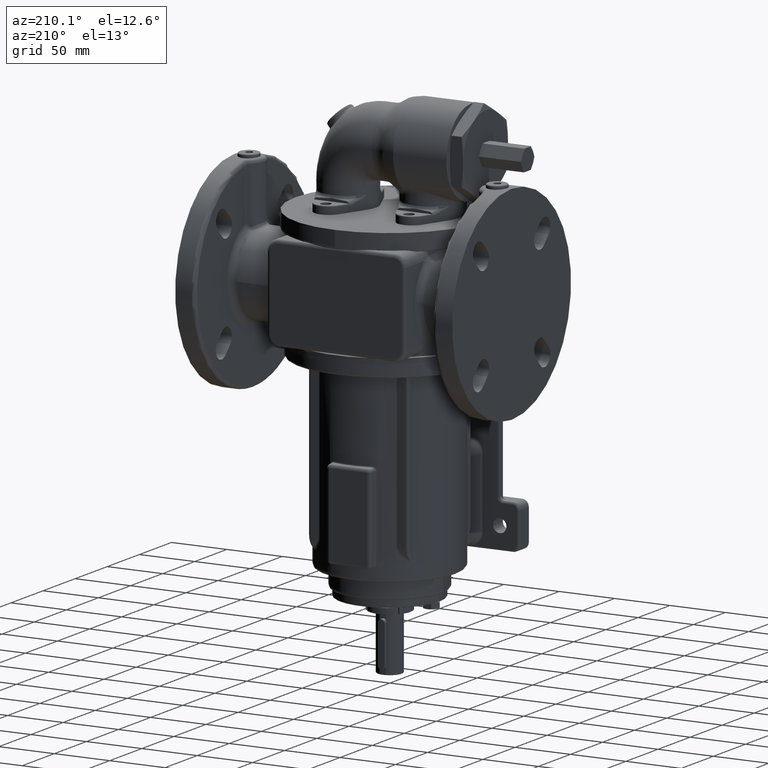
[diagram: clean part render]
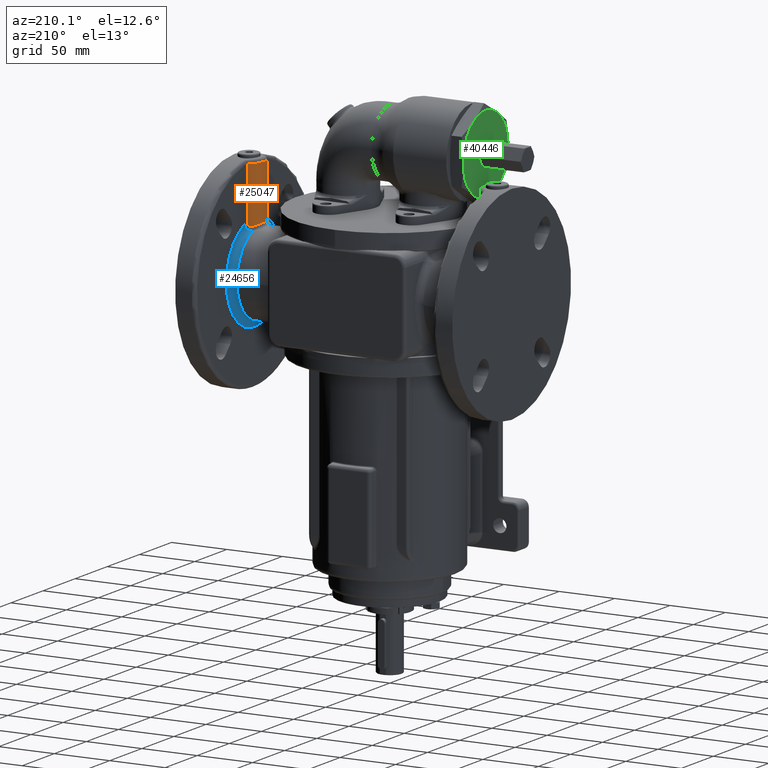
[diagram: same view with three faces highlighted in distinct colors, each labeled with its STEP entity id]
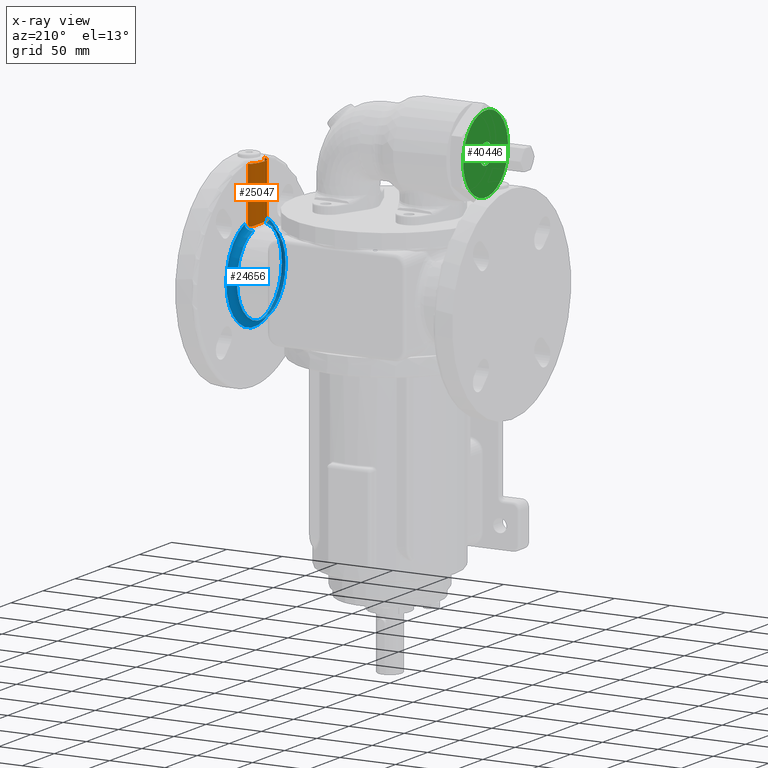
[diagram: x-ray of the same camera — body ghosted, the three highlighted faces saturated]
A machine part, auxiliary view with three faces highlighted in distinct colors.
The next image is the same camera in x-ray (body ghosted, the three faces saturated) — at least one of them is partly hidden behind the body in this view.
Their STEP definitions:

[orange] entity #25047 — the highlighted cylindrical surface (edge-blend (fillet) strip) has radius 15 mm, axis along (0, 0, -1).
#2367=CARTESIAN_POINT('',(1.055E2,1.300961894323E1,1.388946005109E2));
#2385=CARTESIAN_POINT('',(1.055E2,1.300961894323E1,1.388946005109E2));
#2386=CARTESIAN_POINT('',(1.046744870140E2,1.348622923909E1,1.389391749402E2));
#2387=CARTESIAN_POINT('',(1.031146423224E2,1.459712974241E1,1.390381606301E2));
#2388=CARTESIAN_POINT('',(1.011311824444E2,1.667916486277E1,1.391949880936E2));
#2389=CARTESIAN_POINT('',(9.958038842211E1,1.909702391319E1,1.393372842007E2));
#2390=CARTESIAN_POINT('',(9.851738151447E1,2.175971517704E1,1.394447374191E2));
#2391=CARTESIAN_POINT('',(9.797754856775E1,2.457014652371E1,1.395023807493E2));
#2392=CARTESIAN_POINT('',(9.797754857717E1,2.742985350508E1,1.395023807482E2));
#2393=CARTESIAN_POINT('',(9.851738148848E1,3.024028470287E1,1.394447374219E2));
#2394=CARTESIAN_POINT('',(9.958038831947E1,3.290297586495E1,1.393372842113E2));
#2395=CARTESIAN_POINT('',(1.011311822268E2,3.532083487305E1,1.391949881120E2));
#2396=CARTESIAN_POINT('',(1.031146422758E2,3.740287023757E1,1.390381606324E2));
#2397=CARTESIAN_POINT('',(1.046744870033E2,3.851377075443E1,1.389391749408E2));
#2398=CARTESIAN_POINT('',(1.055E2,3.899038105677E1,1.388946005109E2));
#2400=DIRECTION('',(2.449402328071E-12,4.241662451964E-12,1.E0));
#2401=VECTOR('',#2400,4.774851928806E1);
#2402=CARTESIAN_POINT('',(1.054999999999E2,1.300961894303E1,9.114608122288E1));
#2403=LINE('',#2402,#2401);
#2404=CARTESIAN_POINT('',(1.054999999999E2,1.300961894303E1,9.114608122288E1));
#2405=CARTESIAN_POINT('',(1.054999997280E2,1.300961906456E1,9.081384565928E1));
#2406=CARTESIAN_POINT('',(1.054223682495E2,1.305404410605E1,9.021420455046E1));
#2407=CARTESIAN_POINT('',(1.051270075634E2,1.322992298092E1,8.948971563349E1));
#2408=CARTESIAN_POINT('',(1.047226540636E2,1.348695009346E1,8.899612753682E1));
#2409=CARTESIAN_POINT('',(1.042418771863E2,1.381639181197E1,8.869209275766E1));
#2410=CARTESIAN_POINT('',(1.036515184681E2,1.426048745236E1,8.857909903673E1));
#2411=CARTESIAN_POINT('',(1.032224382362E2,1.462070543178E1,8.866006610453E1));
#2412=CARTESIAN_POINT('',(1.030000000677E2,1.481966005424E1,8.874274123299E1));
#2414=CARTESIAN_POINT('',(1.030000000677E2,1.481966005424E1,8.874274123299E1));
#2415=CARTESIAN_POINT('',(1.023303075185E2,1.541865127032E1,8.899165414848E1));
#2416=CARTESIAN_POINT('',(1.011196068738E2,1.671644537036E1,8.948618318100E1));
#2417=CARTESIAN_POINT('',(9.969338298284E1,1.891855415298E1,9.014221318958E1));
#2418=CARTESIAN_POINT('',(9.870448937423E1,2.123878988276E1,9.063318698764E1));
#2419=CARTESIAN_POINT('',(9.812622748493E1,2.360865673325E1,9.093315086317E1));
#2420=CARTESIAN_POINT('',(9.800000086547E1,2.520831578911E1,9.099999946975E1));
#2421=CARTESIAN_POINT('',(9.800000000001E1,2.599998589956E1,9.099999999998E1));
#2423=CARTESIAN_POINT('',(9.800000000001E1,2.599998589956E1,9.099999999998E1));
#2424=CARTESIAN_POINT('',(9.799999937634E1,2.679163448324E1,9.100000025531E1));
#2425=CARTESIAN_POINT('',(9.812621776106E1,2.839126792372E1,9.093315611963E1));
#2426=CARTESIAN_POINT('',(9.870445763424E1,3.076112638090E1,9.063320282454E1));
#2427=CARTESIAN_POINT('',(9.969338425951E1,3.308145081504E1,9.014221293198E1));
#2428=CARTESIAN_POINT('',(1.011196314136E2,3.528361457077E1,8.948616956532E1));
#2429=CARTESIAN_POINT('',(1.023304257871E2,3.658143107058E1,8.899161007302E1));
#2430=CARTESIAN_POINT('',(1.029998552285E2,3.718021039173E1,8.874279047695E1));
#2432=CARTESIAN_POINT('',(1.054999999999E2,3.899038105702E1,9.114608122288E1));
#2433=CARTESIAN_POINT('',(1.054999997196E2,3.899038093425E1,9.081380805070E1));
#2434=CARTESIAN_POINT('',(1.054223503677E2,3.894594551707E1,9.021410751719E1));
#2435=CARTESIAN_POINT('',(1.051269342451E2,3.877003335811E1,8.948957195791E1));
#2436=CARTESIAN_POINT('',(1.047225000335E2,3.851294716360E1,8.899599290264E1));
#2437=CARTESIAN_POINT('',(1.042416835141E2,3.818347717428E1,8.869198074631E1));
#2438=CARTESIAN_POINT('',(1.036510281680E2,3.773911553750E1,8.857912362167E1));
#2439=CARTESIAN_POINT('',(1.032223309645E2,3.737920642067E1,8.866009626167E1));
#2440=CARTESIAN_POINT('',(1.029998552285E2,3.718021039173E1,8.874279047695E1));
#2442=DIRECTION('',(-3.065175525735E-12,5.308774486873E-12,-1.E0));
#2443=VECTOR('',#2442,4.774851928806E1);
#2444=CARTESIAN_POINT('',(1.055E2,3.899038105677E1,1.388946005109E2));
#2445=LINE('',#2444,#2443);
#13377=VERTEX_POINT('',#2414);
#13378=VERTEX_POINT('',#2421);
#13379=VERTEX_POINT('',#2430);
#13380=VERTEX_POINT('',#2404);
#13397=VERTEX_POINT('',#2367);
#13399=VERTEX_POINT('',#2398);
#13405=CARTESIAN_POINT('',(1.054999999999E2,3.899038105702E1,9.114608122288E1));
#13406=VERTEX_POINT('',#13405);
#25028=CARTESIAN_POINT('',(1.13E2,2.6E1,5.E1));
#25029=DIRECTION('',(0.E0,0.E0,-1.E0));
#25030=DIRECTION('',(-1.E0,0.E0,0.E0));
#25031=AXIS2_PLACEMENT_3D('',#25028,#25029,#25030);
#25032=CYLINDRICAL_SURFACE('',#25031,1.5E1);
#25034=ORIENTED_EDGE('',*,*,#25033,.F.);
#25035=ORIENTED_EDGE('',*,*,#24857,.F.);
#25036=ORIENTED_EDGE('',*,*,#25019,.T.);
#25038=ORIENTED_EDGE('',*,*,#25037,.T.);
#25040=ORIENTED_EDGE('',*,*,#25039,.T.);
#25042=ORIENTED_EDGE('',*,*,#25041,.F.);
#25044=ORIENTED_EDGE('',*,*,#25043,.F.);
#25045=EDGE_LOOP('',(#25034,#25035,#25036,#25038,#25040,#25042,#25044));
#25046=FACE_OUTER_BOUND('',#25045,.F.);
#25047=ADVANCED_FACE('',(#25046),#25032,.T.);
#2399=B_SPLINE_CURVE_WITH_KNOTS('',3,(#2385,#2386,#2387,#2388,#2389,#2390,#2391,
#2392,#2393,#2394,#2395,#2396,#2397,#2398),.UNSPECIFIED.,.F.,.F.,(4,1,1,1,1,1,1,
1,1,1,1,4),(0.E0,9.090909090909E-2,1.818181818182E-1,2.727272727273E-1,
3.636363636364E-1,4.545454545455E-1,5.454545454545E-1,6.363636363636E-1,
7.272727272727E-1,8.181818181818E-1,9.090909090909E-1,1.E0),.UNSPECIFIED.);
#2413=B_SPLINE_CURVE_WITH_KNOTS('',3,(#2404,#2405,#2406,#2407,#2408,#2409,#2410,
#2411,#2412),.UNSPECIFIED.,.F.,.F.,(4,1,1,1,1,1,4),(0.E0,1.666666666667E-1,
3.333333333333E-1,5.E-1,6.666666666667E-1,8.333333333333E-1,1.E0),
.UNSPECIFIED.);
#2422=B_SPLINE_CURVE_WITH_KNOTS('',3,(#2414,#2415,#2416,#2417,#2418,#2419,#2420,
#2421),.UNSPECIFIED.,.F.,.F.,(4,1,1,1,1,4),(0.E0,2.E-1,4.E-1,6.E-1,8.E-1,1.E0),
.UNSPECIFIED.);
#2431=B_SPLINE_CURVE_WITH_KNOTS('',3,(#2423,#2424,#2425,#2426,#2427,#2428,#2429,
#2430),.UNSPECIFIED.,.F.,.F.,(4,1,1,1,1,4),(0.E0,2.E-1,4.E-1,6.E-1,8.E-1,1.E0),
.UNSPECIFIED.);
#2441=B_SPLINE_CURVE_WITH_KNOTS('',3,(#2432,#2433,#2434,#2435,#2436,#2437,#2438,
#2439,#2440),.UNSPECIFIED.,.F.,.F.,(4,1,1,1,1,1,4),(0.E0,1.666666666667E-1,
3.333333333333E-1,5.E-1,6.666666666667E-1,8.333333333333E-1,1.E0),
.UNSPECIFIED.);
#24857=EDGE_CURVE('',#13380,#13397,#2403,.T.);
#25019=EDGE_CURVE('',#13380,#13377,#2413,.T.);
#25033=EDGE_CURVE('',#13397,#13399,#2399,.T.);
#25037=EDGE_CURVE('',#13377,#13378,#2422,.T.);
#25039=EDGE_CURVE('',#13378,#13379,#2431,.T.);
#25041=EDGE_CURVE('',#13406,#13379,#2441,.T.);
#25043=EDGE_CURVE('',#13399,#13406,#2445,.T.);

[blue] entity #24656 — the highlighted toroidal blend (fillet) surface has major radius 44 mm and minor (blend) radius 6 mm.
#2043=CARTESIAN_POINT('',(1.01E2,2.6E1,5.E1));
#2044=DIRECTION('',(-1.E0,0.E0,0.E0));
#2045=DIRECTION('',(0.E0,1.E0,0.E0));
#2046=AXIS2_PLACEMENT_3D('',#2043,#2044,#2045);
#2121=CARTESIAN_POINT('',(1.01E2,2.6E1,5.E1));
#2122=DIRECTION('',(-1.E0,0.E0,0.E0));
#2123=DIRECTION('',(0.E0,3.272294861467E-1,9.449448996615E-1));
#2124=AXIS2_PLACEMENT_3D('',#2121,#2122,#2123);
#2144=CARTESIAN_POINT('',(1.01E2,2.6E1,5.E1));
#2145=DIRECTION('',(-1.E0,0.E0,0.E0));
#2146=DIRECTION('',(0.E0,-1.E0,0.E0));
#2147=AXIS2_PLACEMENT_3D('',#2144,#2145,#2146);
#2261=CARTESIAN_POINT('',(1.07E2,2.6E1,5.E1));
#2262=DIRECTION('',(1.E0,0.E0,0.E0));
#2263=DIRECTION('',(0.E0,-3.542831251125E-1,9.351382075718E-1));
#2264=AXIS2_PLACEMENT_3D('',#2261,#2262,#2263);
#2374=CARTESIAN_POINT('',(1.01E2,1.356528051804E1,8.590790652643E1));
#2375=CARTESIAN_POINT('',(1.014784347404E2,1.336694418886E1,8.583922332807E1));
#2376=CARTESIAN_POINT('',(1.024188108405E2,1.297843663201E1,8.582289852321E1));
#2377=CARTESIAN_POINT('',(1.037040777124E2,1.243321462346E1,8.612462750087E1));
#2378=CARTESIAN_POINT('',(1.048267304812E2,1.192648507828E1,8.671075423675E1));
#2379=CARTESIAN_POINT('',(1.057536883095E2,1.146130075248E1,8.754392597931E1));
#2380=CARTESIAN_POINT('',(1.064546734651E2,1.104318919375E1,8.858845874705E1));
#2381=CARTESIAN_POINT('',(1.068972536620E2,1.068283654944E1,8.980380861220E1));
#2382=CARTESIAN_POINT('',(1.069999999096E2,1.049170380232E1,9.069254779263E1));
#2383=CARTESIAN_POINT('',(1.069999999989E2,1.041154273188E1,9.114608104417E1));
#2464=CARTESIAN_POINT('',(1.069999999987E2,4.158845726812E1,9.114608104159E1));
#2465=CARTESIAN_POINT('',(1.069999999069E2,4.150829642493E1,9.069254845294E1));
#2466=CARTESIAN_POINT('',(1.068972508210E2,4.131716075084E1,8.980379929713E1));
#2467=CARTESIAN_POINT('',(1.064546699240E2,4.095680521095E1,8.858843278427E1));
#2468=CARTESIAN_POINT('',(1.057535882069E2,4.053864469816E1,8.754380771733E1));
#2469=CARTESIAN_POINT('',(1.048266906064E2,4.007349762168E1,8.671074148868E1));
#2470=CARTESIAN_POINT('',(1.037041109509E2,3.956680083796E1,8.612464035680E1));
#2471=CARTESIAN_POINT('',(1.024188223963E2,3.902156459720E1,8.582289839639E1));
#2472=CARTESIAN_POINT('',(1.014784377835E2,3.863306387028E1,8.583922064485E1));
#2473=CARTESIAN_POINT('',(1.009999999978E2,3.843471973017E1,8.590790643201E1));
#13291=CARTESIAN_POINT('',(1.01E2,-1.2E1,5.E1));
#13292=CARTESIAN_POINT('',(1.01E2,1.356528052099E1,8.590790653155E1));
#13293=VERTEX_POINT('',#13291);
#13294=VERTEX_POINT('',#13292);
#13295=CARTESIAN_POINT('',(1.01E2,6.4E1,5.E1));
#13296=VERTEX_POINT('',#13295);
#13297=CARTESIAN_POINT('',(1.01E2,3.843472047357E1,8.590790618714E1));
#13298=VERTEX_POINT('',#13297);
#13299=CARTESIAN_POINT('',(1.07E2,1.041154249505E1,9.114608113316E1));
#13300=CARTESIAN_POINT('',(1.07E2,4.158845750837E1,9.114608113186E1));
#13301=VERTEX_POINT('',#13299);
#13302=VERTEX_POINT('',#13300);
#24640=CARTESIAN_POINT('',(1.01E2,2.6E1,5.E1));
#24641=DIRECTION('',(1.E0,0.E0,0.E0));
#24642=DIRECTION('',(0.E0,-2.225166584780E-3,-9.999975243138E-1));
#24643=AXIS2_PLACEMENT_3D('',#24640,#24641,#24642);
#24644=TOROIDAL_SURFACE('',#24643,4.4E1,6.E0);
#24646=ORIENTED_EDGE('',*,*,#24645,.T.);
#24648=ORIENTED_EDGE('',*,*,#24647,.T.);
#24649=ORIENTED_EDGE('',*,*,#23338,.T.);
#24650=ORIENTED_EDGE('',*,*,#23311,.T.);
#24651=ORIENTED_EDGE('',*,*,#23344,.T.);
#24653=ORIENTED_EDGE('',*,*,#24652,.T.);
#24654=EDGE_LOOP('',(#24646,#24648,#24649,#24650,#24651,#24653));
#24655=FACE_OUTER_BOUND('',#24654,.F.);
#24656=ADVANCED_FACE('',(#24655),#24644,.F.);
#2047=CIRCLE('',#2046,3.8E1);
#2125=CIRCLE('',#2124,3.8E1);
#2148=CIRCLE('',#2147,3.8E1);
#2265=CIRCLE('',#2264,4.4E1);
#2384=B_SPLINE_CURVE_WITH_KNOTS('',3,(#2374,#2375,#2376,#2377,#2378,#2379,#2380,
#2381,#2382,#2383),.UNSPECIFIED.,.F.,.F.,(4,1,1,1,1,1,1,4),(0.E0,
1.428571428571E-1,2.857142857143E-1,4.285714285714E-1,5.714285714286E-1,
7.142857142857E-1,8.571428571429E-1,1.E0),.UNSPECIFIED.);
#2474=B_SPLINE_CURVE_WITH_KNOTS('',3,(#2464,#2465,#2466,#2467,#2468,#2469,#2470,
#2471,#2472,#2473),.UNSPECIFIED.,.F.,.F.,(4,1,1,1,1,1,1,4),(0.E0,
1.428571428571E-1,2.857142857143E-1,4.285714285714E-1,5.714285714286E-1,
7.142857142857E-1,8.571428571429E-1,1.E0),.UNSPECIFIED.);
#23311=EDGE_CURVE('',#13296,#13293,#2047,.T.);
#23338=EDGE_CURVE('',#13298,#13296,#2125,.T.);
#23344=EDGE_CURVE('',#13293,#13294,#2148,.T.);
#24645=EDGE_CURVE('',#13301,#13302,#2265,.T.);
#24647=EDGE_CURVE('',#13302,#13298,#2474,.T.);
#24652=EDGE_CURVE('',#13294,#13301,#2384,.T.);

[green] entity #40446 — the highlighted planar face has unit normal (-1, 0, 0).
#11215=CARTESIAN_POINT('',(-8.65E1,1.626757025505E-13,1.61E2));
#11216=DIRECTION('',(-1.E0,0.E0,0.E0));
#11217=DIRECTION('',(0.E0,5.E-1,-8.660254037844E-1));
#11218=AXIS2_PLACEMENT_3D('',#11215,#11216,#11217);
#11220=CARTESIAN_POINT('',(-8.65E1,-1.75E1,1.306891108675E2));
#11236=CARTESIAN_POINT('',(-8.65E1,1.626757025505E-13,1.61E2));
#11237=DIRECTION('',(1.E0,0.E0,0.E0));
#11238=DIRECTION('',(0.E0,-5.E-1,8.660254037844E-1));
#11239=AXIS2_PLACEMENT_3D('',#11236,#11237,#11238);
#11241=CARTESIAN_POINT('',(-8.65E1,1.626757025505E-13,1.61E2));
#11242=DIRECTION('',(1.E0,0.E0,0.E0));
#11243=DIRECTION('',(0.E0,-1.E0,0.E0));
#11244=AXIS2_PLACEMENT_3D('',#11241,#11242,#11243);
#11246=CARTESIAN_POINT('',(-8.65E1,1.626757025505E-13,1.61E2));
#11247=DIRECTION('',(-1.E0,0.E0,0.E0));
#11248=DIRECTION('',(0.E0,1.E0,0.E0));
#11249=AXIS2_PLACEMENT_3D('',#11246,#11247,#11248);
#11251=CARTESIAN_POINT('',(-8.65E1,1.626757025505E-13,1.61E2));
#11252=DIRECTION('',(-1.E0,0.E0,0.E0));
#11253=DIRECTION('',(0.E0,5.E-1,8.660254037844E-1));
#11254=AXIS2_PLACEMENT_3D('',#11251,#11252,#11253);
#11256=CARTESIAN_POINT('',(-8.65E1,1.626757025505E-13,1.61E2));
#11257=DIRECTION('',(1.E0,0.E0,0.E0));
#11258=DIRECTION('',(0.E0,0.E0,-1.E0));
#11259=AXIS2_PLACEMENT_3D('',#11256,#11257,#11258);
#11261=CARTESIAN_POINT('',(-8.65E1,1.626757025505E-13,1.61E2));
#11262=DIRECTION('',(1.E0,0.E0,0.E0));
#11263=DIRECTION('',(0.E0,-8.660254183595E-1,-4.999999747553E-1));
#11264=AXIS2_PLACEMENT_3D('',#11261,#11262,#11263);
#11266=CARTESIAN_POINT('',(-8.65E1,1.626757025505E-13,1.61E2));
#11267=DIRECTION('',(1.E0,0.E0,0.E0));
#11268=DIRECTION('',(0.E0,-8.660254183595E-1,4.999999747553E-1));
#11269=AXIS2_PLACEMENT_3D('',#11266,#11267,#11268);
#11271=CARTESIAN_POINT('',(-8.65E1,1.626757025505E-13,1.61E2));
#11272=DIRECTION('',(1.E0,0.E0,0.E0));
#11273=DIRECTION('',(0.E0,0.E0,1.E0));
#11274=AXIS2_PLACEMENT_3D('',#11271,#11272,#11273);
#11276=CARTESIAN_POINT('',(-8.65E1,1.626757025505E-13,1.61E2));
#11277=DIRECTION('',(1.E0,0.E0,0.E0));
#11278=DIRECTION('',(0.E0,8.660254183595E-1,4.999999747553E-1));
#11279=AXIS2_PLACEMENT_3D('',#11276,#11277,#11278);
#11281=CARTESIAN_POINT('',(-8.65E1,1.626757025505E-13,1.61E2));
#11282=DIRECTION('',(1.E0,0.E0,0.E0));
#11283=DIRECTION('',(0.E0,8.660254183595E-1,-4.999999747553E-1));
#11284=AXIS2_PLACEMENT_3D('',#11281,#11282,#11283);
#11286=CARTESIAN_POINT('',(-8.65E1,1.626757025505E-13,1.61E2));
#11287=DIRECTION('',(-1.E0,0.E0,0.E0));
#11288=DIRECTION('',(0.E0,-5.E-1,8.660254037844E-1));
#11289=AXIS2_PLACEMENT_3D('',#11286,#11287,#11288);
#11291=CARTESIAN_POINT('',(-8.65E1,1.75E1,1.913108891325E2));
#11315=CARTESIAN_POINT('',(-8.65E1,-1.75E1,1.913108891325E2));
#11331=CARTESIAN_POINT('',(-8.65E1,-3.5E1,1.61E2));
#11347=CARTESIAN_POINT('',(-8.65E1,1.75E1,1.306891108675E2));
#11355=CARTESIAN_POINT('',(-8.65E1,3.5E1,1.61E2));
#14086=VERTEX_POINT('',#11220);
#14089=VERTEX_POINT('',#11331);
#14091=VERTEX_POINT('',#11315);
#14098=VERTEX_POINT('',#11355);
#14101=VERTEX_POINT('',#11347);
#14102=VERTEX_POINT('',#11291);
#14149=CARTESIAN_POINT('',(-8.65E1,1.395807439216E-13,1.515E2));
#14150=CARTESIAN_POINT('',(-8.65E1,8.227241474415E0,1.562500002398E2));
#14151=VERTEX_POINT('',#14149);
#14152=VERTEX_POINT('',#14150);
#14153=CARTESIAN_POINT('',(-8.65E1,8.227241474415E0,1.657499997602E2));
#14154=VERTEX_POINT('',#14153);
#14155=CARTESIAN_POINT('',(-8.65E1,2.168545861522E-13,1.705E2));
#14156=VERTEX_POINT('',#14155);
#14157=CARTESIAN_POINT('',(-8.65E1,-8.227241474415E0,1.657499997602E2));
#14158=VERTEX_POINT('',#14157);
#14159=CARTESIAN_POINT('',(-8.65E1,-8.227241474415E0,1.562500002398E2));
#14160=VERTEX_POINT('',#14159);
#40414=CARTESIAN_POINT('',(-8.65E1,1.626757025505E-13,1.61E2));
#40415=DIRECTION('',(-1.E0,0.E0,0.E0));
#40416=DIRECTION('',(0.E0,0.E0,-1.E0));
#40417=AXIS2_PLACEMENT_3D('',#40414,#40415,#40416);
#40418=PLANE('',#40417);
#40420=ORIENTED_EDGE('',*,*,#40419,.F.);
#40422=ORIENTED_EDGE('',*,*,#40421,.T.);
#40424=ORIENTED_EDGE('',*,*,#40423,.T.);
#40425=ORIENTED_EDGE('',*,*,#40407,.F.);
#40427=ORIENTED_EDGE('',*,*,#40426,.F.);
#40429=ORIENTED_EDGE('',*,*,#40428,.F.);
#40430=EDGE_LOOP('',(#40420,#40422,#40424,#40425,#40427,#40429));
#40431=FACE_OUTER_BOUND('',#40430,.F.);
#40433=ORIENTED_EDGE('',*,*,#40432,.F.);
#40435=ORIENTED_EDGE('',*,*,#40434,.F.);
#40437=ORIENTED_EDGE('',*,*,#40436,.F.);
#40439=ORIENTED_EDGE('',*,*,#40438,.F.);
#40441=ORIENTED_EDGE('',*,*,#40440,.F.);
#40443=ORIENTED_EDGE('',*,*,#40442,.F.);
#40444=EDGE_LOOP('',(#40433,#40435,#40437,#40439,#40441,#40443));
#40445=FACE_BOUND('',#40444,.F.);
#40446=ADVANCED_FACE('',(#40431,#40445),#40418,.T.);
#11219=CIRCLE('',#11218,3.5E1);
#11240=CIRCLE('',#11239,3.5E1);
#11245=CIRCLE('',#11244,3.5E1);
#11250=CIRCLE('',#11249,3.5E1);
#11255=CIRCLE('',#11254,3.5E1);
#11260=CIRCLE('',#11259,9.5E0);
#11265=CIRCLE('',#11264,9.5E0);
#11270=CIRCLE('',#11269,9.5E0);
#11275=CIRCLE('',#11274,9.5E0);
#11280=CIRCLE('',#11279,9.5E0);
#11285=CIRCLE('',#11284,9.5E0);
#11290=CIRCLE('',#11289,3.5E1);
#40407=EDGE_CURVE('',#14101,#14086,#11219,.T.);
#40419=EDGE_CURVE('',#14091,#14102,#11290,.T.);
#40421=EDGE_CURVE('',#14091,#14089,#11240,.T.);
#40423=EDGE_CURVE('',#14089,#14086,#11245,.T.);
#40426=EDGE_CURVE('',#14098,#14101,#11250,.T.);
#40428=EDGE_CURVE('',#14102,#14098,#11255,.T.);
#40432=EDGE_CURVE('',#14151,#14152,#11260,.T.);
#40434=EDGE_CURVE('',#14160,#14151,#11265,.T.);
#40436=EDGE_CURVE('',#14158,#14160,#11270,.T.);
#40438=EDGE_CURVE('',#14156,#14158,#11275,.T.);
#40440=EDGE_CURVE('',#14154,#14156,#11280,.T.);
#40442=EDGE_CURVE('',#14152,#14154,#11285,.T.);